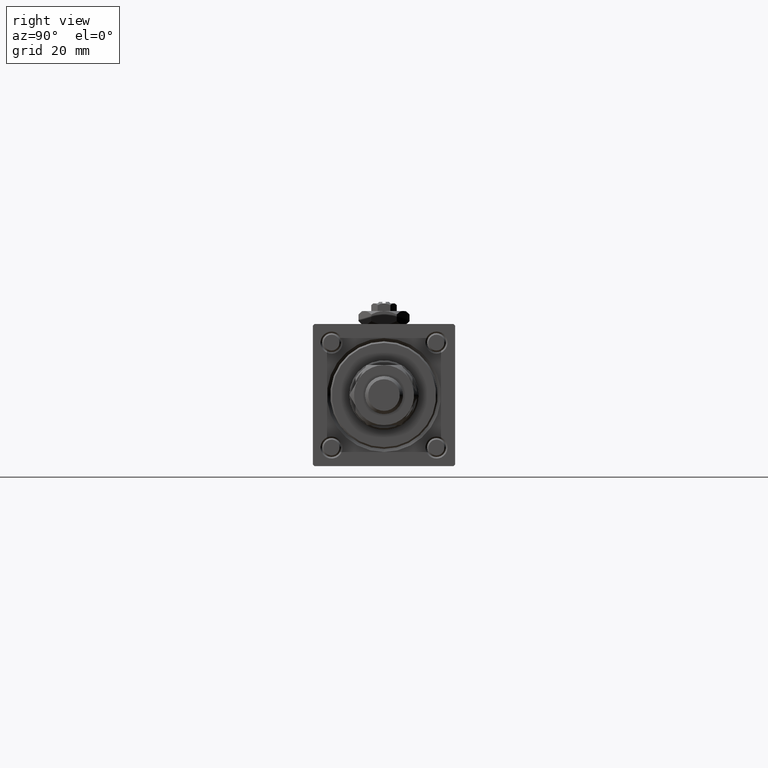
[diagram: clean part render]
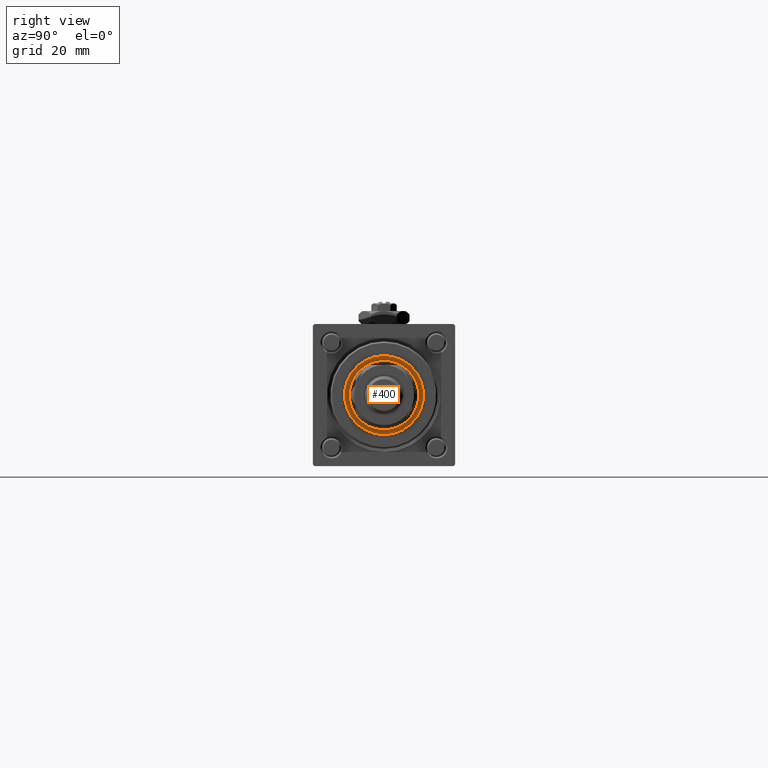
[diagram: same view with one face highlighted and labeled with its STEP entity id]
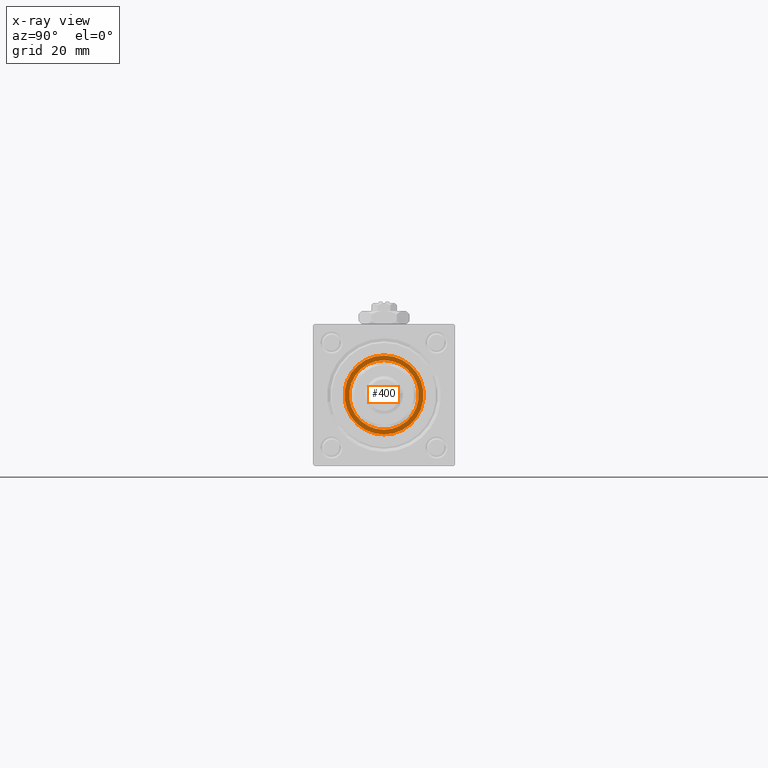
[diagram: x-ray of the same camera — body ghosted, the highlighted face saturated]
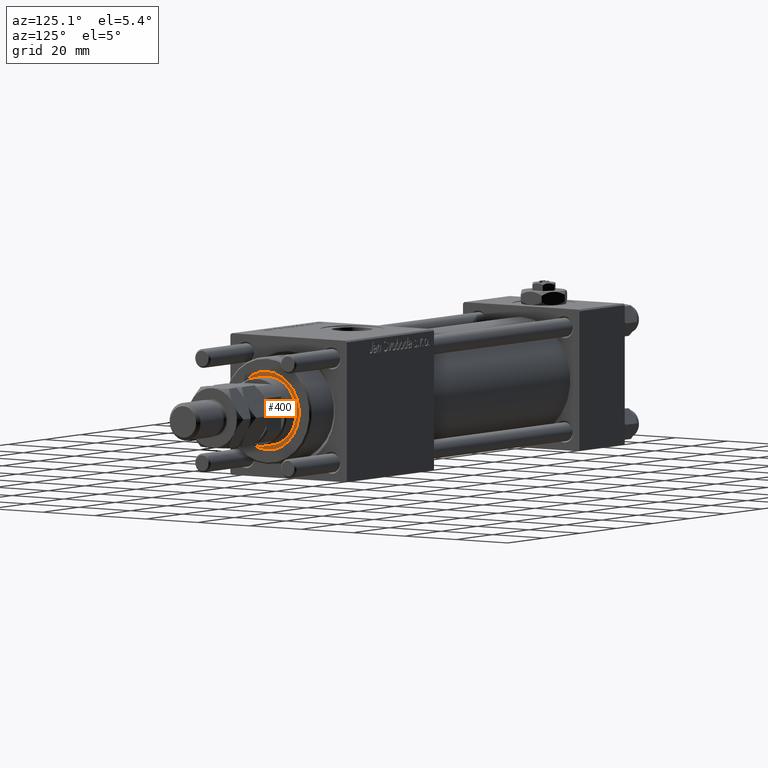
[diagram: same view with one face highlighted and labeled with its STEP entity id]
A machine part, right view. The second image highlights one B-rep face of the part: STEP entity #400.
The next image is the same camera in x-ray: the body ghosted, the highlighted face saturated — about 0% of this face is hidden behind the body in this view.
A second angle (auxiliary view) of the same face is appended — the face is thin or edge-on in the first view.
In plain terms, the highlighted planar face has unit normal (1, 0, 0).
Its self-contained STEP definition (entity closure, byte-faithful):
#54 = CARTESIAN_POINT ( 'NONE',  ( 0.000000000000000000, 0.000000000000000000, 40.20000000000000284 ) ) ;
#400 = ADVANCED_FACE ( 'NONE', ( #53803, #16109 ), #53188, .T. ) ;
#1113 = CIRCLE ( 'NONE', #35069, 11.00000000000000000 ) ;
#3784 = EDGE_CURVE ( 'NONE', #58177, #5003, #9450, .T. ) ;
#5003 = VERTEX_POINT ( 'NONE', #48278 ) ;
#5507 = DIRECTION ( 'NONE',  ( 0.000000000000000000, 0.000000000000000000, 1.000000000000000000 ) ) ;
#6390 = DIRECTION ( 'NONE',  ( 0.000000000000000000, 0.000000000000000000, 1.000000000000000000 ) ) ;
#6900 = CARTESIAN_POINT ( 'NONE',  ( -11.00000000000000000, 1.347111479062088405E-15, 40.20000000000000284 ) ) ;
#9450 = CIRCLE ( 'NONE', #24972, 12.50000000000000000 ) ;
#11553 = DIRECTION ( 'NONE',  ( 1.000000000000000000, 0.000000000000000000, -0.000000000000000000 ) ) ;
#12696 = AXIS2_PLACEMENT_3D ( 'NONE', #12930, #13521, #32061 ) ;
#12930 = CARTESIAN_POINT ( 'NONE',  ( 0.000000000000000000, 0.000000000000000000, 40.20000000000000284 ) ) ;
#13521 = DIRECTION ( 'NONE',  ( 0.000000000000000000, 0.000000000000000000, 1.000000000000000000 ) ) ;
#14287 = VERTEX_POINT ( 'NONE', #28918 ) ;
#16109 = FACE_BOUND ( 'NONE', #26594, .T. ) ;
#16308 = EDGE_CURVE ( 'NONE', #14287, #33252, #1113, .T. ) ;
#17953 = EDGE_LOOP ( 'NONE', ( #43644, #24028 ) ) ;
#20387 = EDGE_CURVE ( 'NONE', #33252, #14287, #57424, .T. ) ;
#20987 = AXIS2_PLACEMENT_3D ( 'NONE', #43747, #6390, #11553 ) ;
#24028 = ORIENTED_EDGE ( 'NONE', *, *, #30771, .T. ) ;
#24972 = AXIS2_PLACEMENT_3D ( 'NONE', #54, #5507, #55680 ) ;
#25379 = CARTESIAN_POINT ( 'NONE',  ( 0.000000000000000000, 0.000000000000000000, 40.20000000000000284 ) ) ;
#26594 = EDGE_LOOP ( 'NONE', ( #55599, #41620 ) ) ;
#28313 = AXIS2_PLACEMENT_3D ( 'NONE', #33507, #38050, #43499 ) ;
#28918 = CARTESIAN_POINT ( 'NONE',  ( 11.00000000000000000, 0.000000000000000000, 40.20000000000000284 ) ) ;
#30771 = EDGE_CURVE ( 'NONE', #5003, #58177, #44699, .T. ) ;
#32061 = DIRECTION ( 'NONE',  ( 1.000000000000000000, 0.000000000000000000, 0.000000000000000000 ) ) ;
#33252 = VERTEX_POINT ( 'NONE', #6900 ) ;
#33507 = CARTESIAN_POINT ( 'NONE',  ( 0.000000000000000000, 0.000000000000000000, 40.20000000000000284 ) ) ;
#35069 = AXIS2_PLACEMENT_3D ( 'NONE', #25379, #39332, #57902 ) ;
#38050 = DIRECTION ( 'NONE',  ( -0.000000000000000000, -0.000000000000000000, -1.000000000000000000 ) ) ;
#39332 = DIRECTION ( 'NONE',  ( -0.000000000000000000, -0.000000000000000000, -1.000000000000000000 ) ) ;
#41620 = ORIENTED_EDGE ( 'NONE', *, *, #20387, .T. ) ;
#43499 = DIRECTION ( 'NONE',  ( 1.000000000000000000, 0.000000000000000000, 0.000000000000000000 ) ) ;
#43644 = ORIENTED_EDGE ( 'NONE', *, *, #3784, .T. ) ;
#43747 = CARTESIAN_POINT ( 'NONE',  ( 0.000000000000000000, 0.000000000000000000, 40.20000000000000284 ) ) ;
#44699 = CIRCLE ( 'NONE', #12696, 12.50000000000000000 ) ;
#48278 = CARTESIAN_POINT ( 'NONE',  ( -12.50000000000000000, 1.530808498934191521E-15, 40.20000000000000284 ) ) ;
#53188 = PLANE ( 'NONE',  #20987 ) ;
#53803 = FACE_OUTER_BOUND ( 'NONE', #17953, .T. ) ;
#55599 = ORIENTED_EDGE ( 'NONE', *, *, #16308, .T. ) ;
#55680 = DIRECTION ( 'NONE',  ( 1.000000000000000000, 0.000000000000000000, 0.000000000000000000 ) ) ;
#57424 = CIRCLE ( 'NONE', #28313, 11.00000000000000000 ) ;
#57902 = DIRECTION ( 'NONE',  ( 1.000000000000000000, 0.000000000000000000, 0.000000000000000000 ) ) ;
#58177 = VERTEX_POINT ( 'NONE', #59154 ) ;
#59154 = CARTESIAN_POINT ( 'NONE',  ( 12.50000000000000000, 0.000000000000000000, 40.20000000000000284 ) ) ;